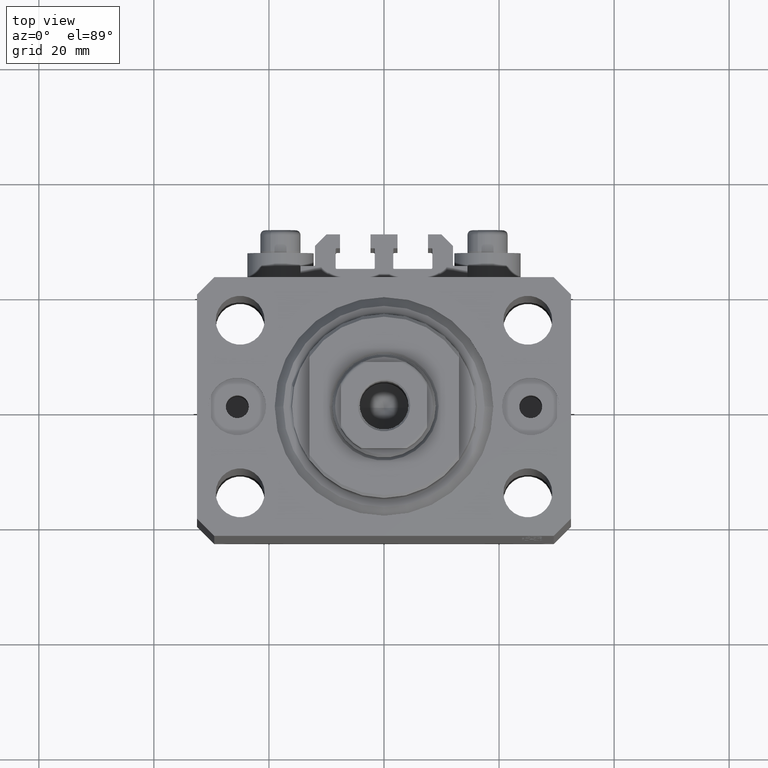
[diagram: clean part render]
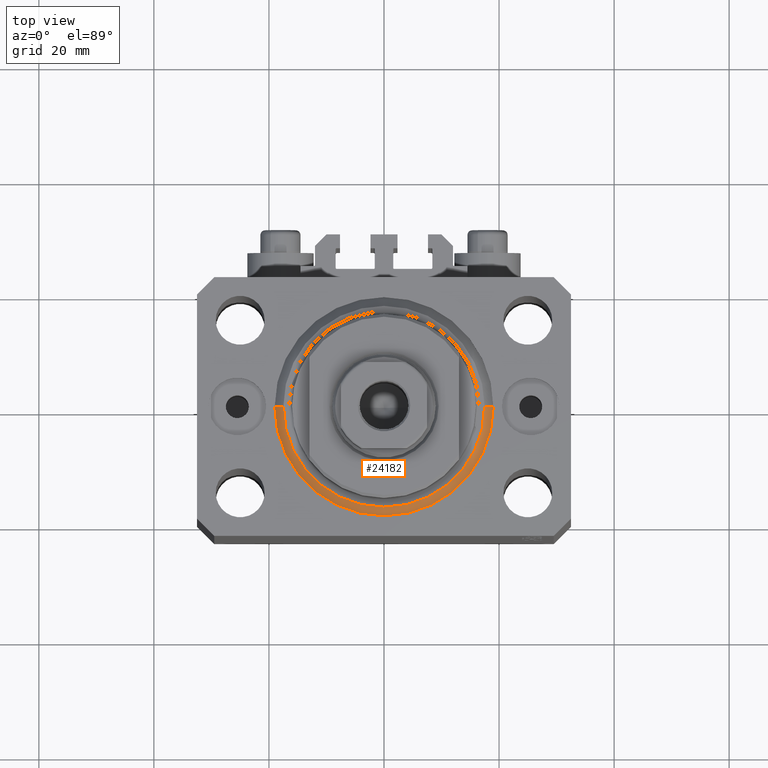
[diagram: same view with one face highlighted and labeled with its STEP entity id]
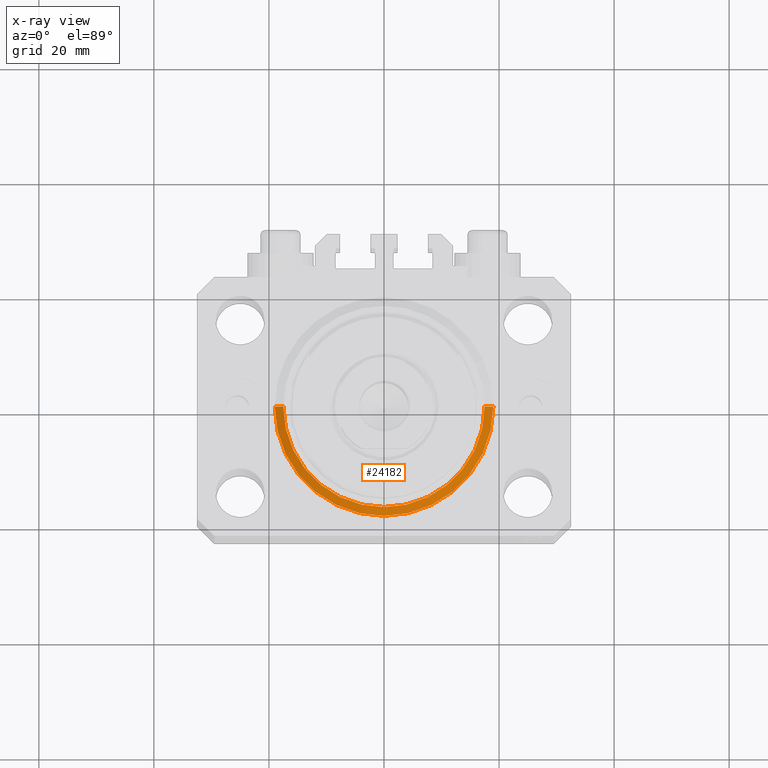
[diagram: x-ray of the same camera — body ghosted, the highlighted face saturated]
A machine part, top view. The second image highlights one B-rep face of the part: STEP entity #24182.
The next image is the same camera in x-ray: the body ghosted, the highlighted face saturated — about 0% of this face is hidden behind the body in this view.
In plain terms, the highlighted conical surface has half-angle 45 deg.
Its self-contained STEP definition (entity closure, byte-faithful):
#446 = CIRCLE ( 'NONE', #24824, 19.00000000000000000 ) ;
#898 = EDGE_CURVE ( 'NONE', #35917, #40828, #39398, .T. ) ;
#4816 = DIRECTION ( 'NONE',  ( 1.000000000000000000, 0.000000000000000000, 0.000000000000000000 ) ) ;
#4865 = CARTESIAN_POINT ( 'NONE',  ( 19.00000000000000000, 0.000000000000000000, 1.500000000000004885 ) ) ;
#8852 = CARTESIAN_POINT ( 'NONE',  ( 0.000000000000000000, 0.000000000000000000, 0.000000000000000000 ) ) ;
#9255 = DIRECTION ( 'NONE',  ( 1.000000000000000000, 0.000000000000000000, 0.000000000000000000 ) ) ;
#10103 = DIRECTION ( 'NONE',  ( -0.7071067811865483499, 8.659560562354943952E-17, 0.7071067811865467956 ) ) ;
#10431 = CARTESIAN_POINT ( 'NONE',  ( -19.00000000000000000, 0.000000000000000000, 1.500000000000004885 ) ) ;
#10610 = VERTEX_POINT ( 'NONE', #10431 ) ;
#10824 = FACE_OUTER_BOUND ( 'NONE', #39135, .T. ) ;
#11298 = CARTESIAN_POINT ( 'NONE',  ( 19.00000000000000000, 2.326828918379970970E-15, 1.500000000000004885 ) ) ;
#11776 = CARTESIAN_POINT ( 'NONE',  ( -17.49999999999999289, 2.234980408443919215E-15, 0.000000000000000000 ) ) ;
#12042 = ORIENTED_EDGE ( 'NONE', *, *, #18803, .T. ) ;
#16802 = LINE ( 'NONE', #42786, #33556 ) ;
#18575 = EDGE_CURVE ( 'NONE', #10610, #25099, #446, .T. ) ;
#18803 = EDGE_CURVE ( 'NONE', #35917, #25099, #45410, .T. ) ;
#19421 = DIRECTION ( 'NONE',  ( 0.7071067811865483499, 0.000000000000000000, 0.7071067811865467956 ) ) ;
#21059 = VECTOR ( 'NONE', #19421, 1000.000000000000000 ) ;
#21117 = DIRECTION ( 'NONE',  ( 1.000000000000000000, 0.000000000000000000, 0.000000000000000000 ) ) ;
#21800 = CARTESIAN_POINT ( 'NONE',  ( 0.000000000000000000, 0.000000000000000000, 1.500000000000004885 ) ) ;
#22589 = AXIS2_PLACEMENT_3D ( 'NONE', #8852, #37489, #4816 ) ;
#24182 = ADVANCED_FACE ( 'NONE', ( #10824 ), #33219, .T. ) ;
#24824 = AXIS2_PLACEMENT_3D ( 'NONE', #46246, #34793, #9255 ) ;
#25099 = VERTEX_POINT ( 'NONE', #11298 ) ;
#25436 = ORIENTED_EDGE ( 'NONE', *, *, #898, .F. ) ;
#28277 = DIRECTION ( 'NONE',  ( -0.000000000000000000, -0.000000000000000000, 1.000000000000000000 ) ) ;
#33219 = CONICAL_SURFACE ( 'NONE', #43138, 19.00000000000000000, 0.7853981633974492782 ) ;
#33556 = VECTOR ( 'NONE', #10103, 1000.000000000000000 ) ;
#34625 = CARTESIAN_POINT ( 'NONE',  ( 17.49999999999999289, 0.000000000000000000, 0.000000000000000000 ) ) ;
#34775 = EDGE_CURVE ( 'NONE', #40828, #10610, #16802, .T. ) ;
#34793 = DIRECTION ( 'NONE',  ( -0.000000000000000000, -0.000000000000000000, 1.000000000000000000 ) ) ;
#35917 = VERTEX_POINT ( 'NONE', #34625 ) ;
#37489 = DIRECTION ( 'NONE',  ( -0.000000000000000000, -0.000000000000000000, -1.000000000000000000 ) ) ;
#39135 = EDGE_LOOP ( 'NONE', ( #40707, #25436, #12042, #46562 ) ) ;
#39398 = CIRCLE ( 'NONE', #22589, 17.49999999999999289 ) ;
#40707 = ORIENTED_EDGE ( 'NONE', *, *, #34775, .F. ) ;
#40828 = VERTEX_POINT ( 'NONE', #11776 ) ;
#42786 = CARTESIAN_POINT ( 'NONE',  ( -19.00000000000000000, 2.326828918379970970E-15, 1.500000000000004885 ) ) ;
#43138 = AXIS2_PLACEMENT_3D ( 'NONE', #21800, #28277, #21117 ) ;
#45410 = LINE ( 'NONE', #4865, #21059 ) ;
#46246 = CARTESIAN_POINT ( 'NONE',  ( 0.000000000000000000, 0.000000000000000000, 1.500000000000004885 ) ) ;
#46562 = ORIENTED_EDGE ( 'NONE', *, *, #18575, .F. ) ;